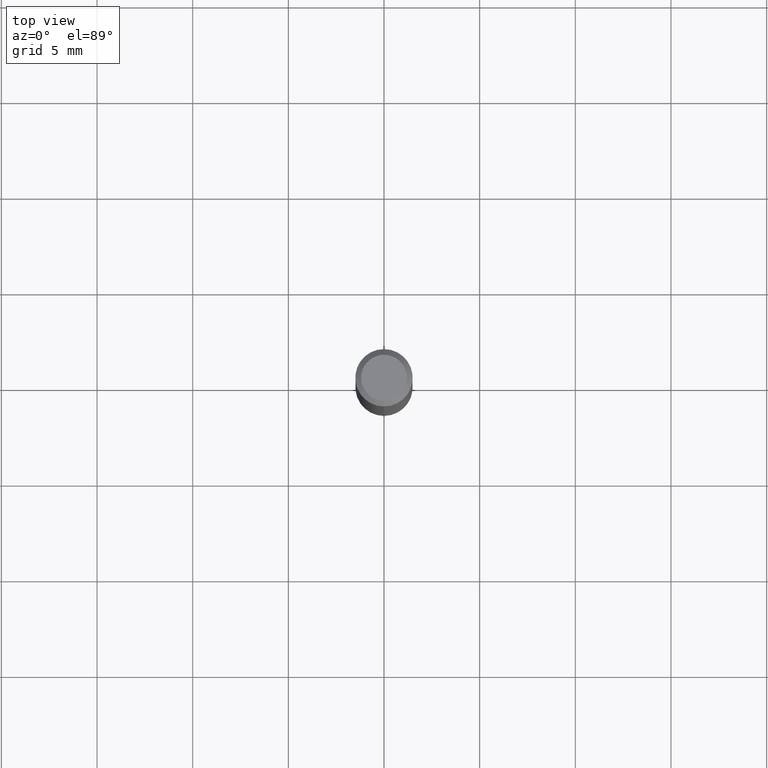
[diagram: clean part render]
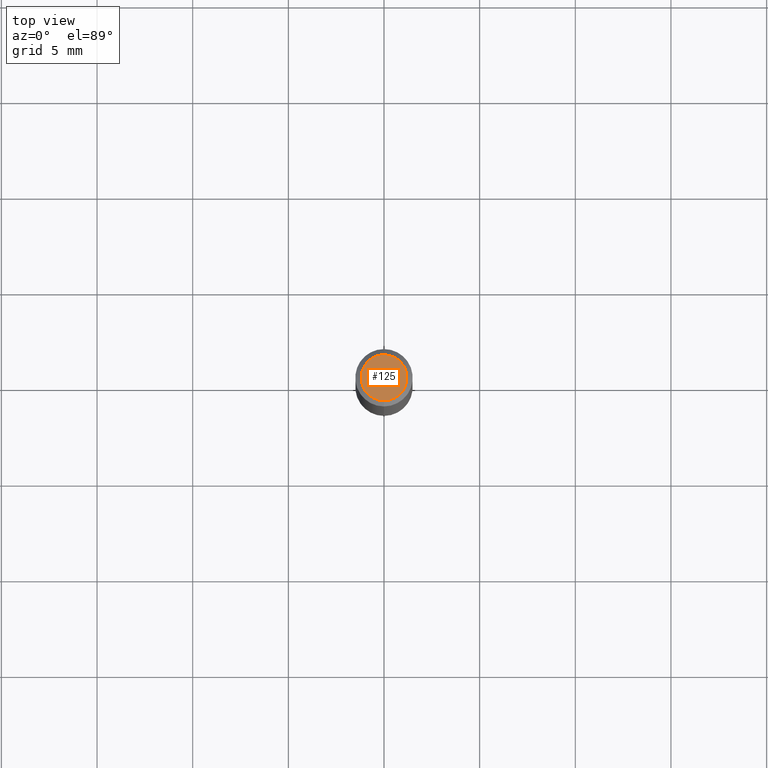
[diagram: same view with one face highlighted and labeled with its STEP entity id]
A machine part, top view. The second image highlights one B-rep face of the part: STEP entity #125.
In plain terms, the highlighted planar face has unit normal (-0, 0, 1).
Its self-contained STEP definition (entity closure, byte-faithful):
#97=EDGE_CURVE('',#107,#175,#233,.T.);
#103=EDGE_CURVE('',#175,#107,#240,.T.);
#107=VERTEX_POINT('',#244);
#125=ADVANCED_FACE('',(#265),#266,.T.);
#175=VERTEX_POINT('',#322);
#233=CIRCLE('',#378,1.2);
#240=CIRCLE('',#388,1.2);
#244=CARTESIAN_POINT('',(0.0,1.2,0.0));
#265=FACE_OUTER_BOUND('',#420,.T.);
#266=PLANE('',#421);
#322=CARTESIAN_POINT('',(1.46952762458685E-016,-1.2,0.0));
#378=AXIS2_PLACEMENT_3D('',#548,#549,#550);
#388=AXIS2_PLACEMENT_3D('',#559,#560,#561);
#420=EDGE_LOOP('',(#593,#594));
#421=AXIS2_PLACEMENT_3D('',#595,#596,#597);
#548=CARTESIAN_POINT('',(0.0,0.0,0.0));
#549=DIRECTION('',(0.0,0.0,-1.0));
#550=DIRECTION('',(0.0,1.0,0.0));
#559=CARTESIAN_POINT('',(0.0,0.0,0.0));
#560=DIRECTION('',(0.0,0.0,-1.0));
#561=DIRECTION('',(0.0,1.0,0.0));
#593=ORIENTED_EDGE('',*,*,#97,.F.);
#594=ORIENTED_EDGE('',*,*,#103,.F.);
#595=CARTESIAN_POINT('',(0.0,0.6,0.0));
#596=DIRECTION('',(-0.0,0.0,1.0));
#597=DIRECTION('',(0.0,-1.0,0.0));